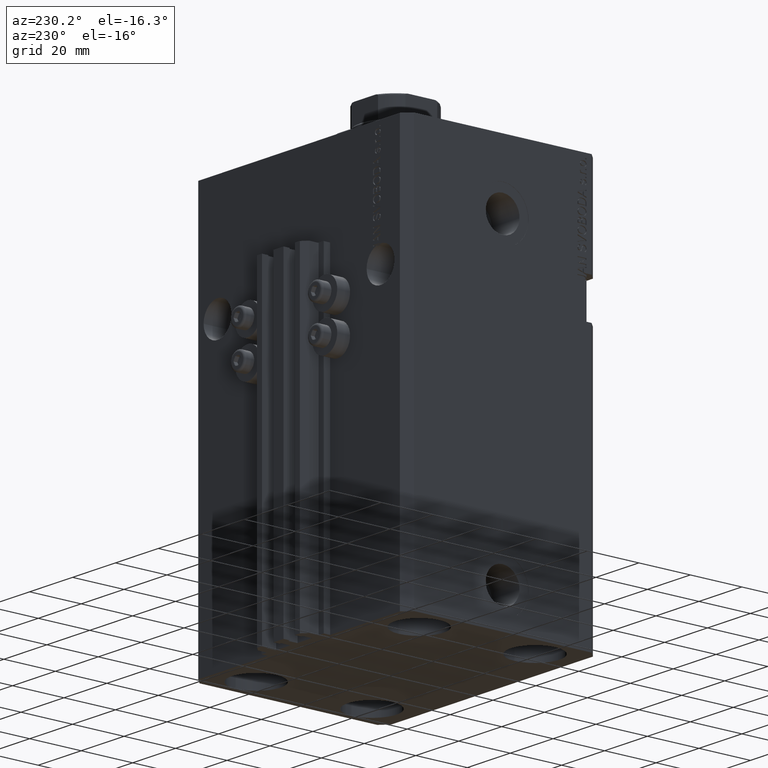
[diagram: clean part render]
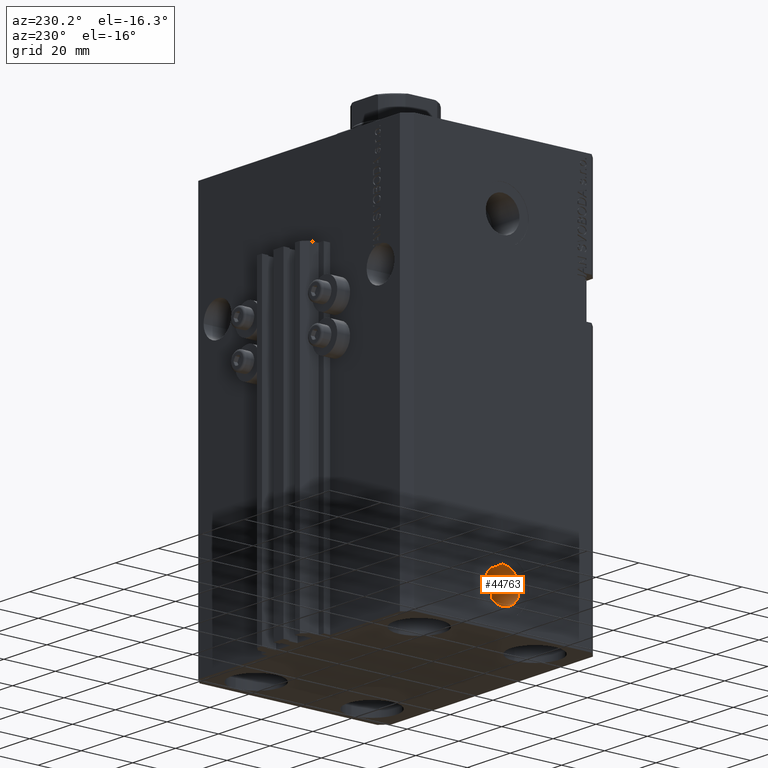
[diagram: same view with one face highlighted and labeled with its STEP entity id]
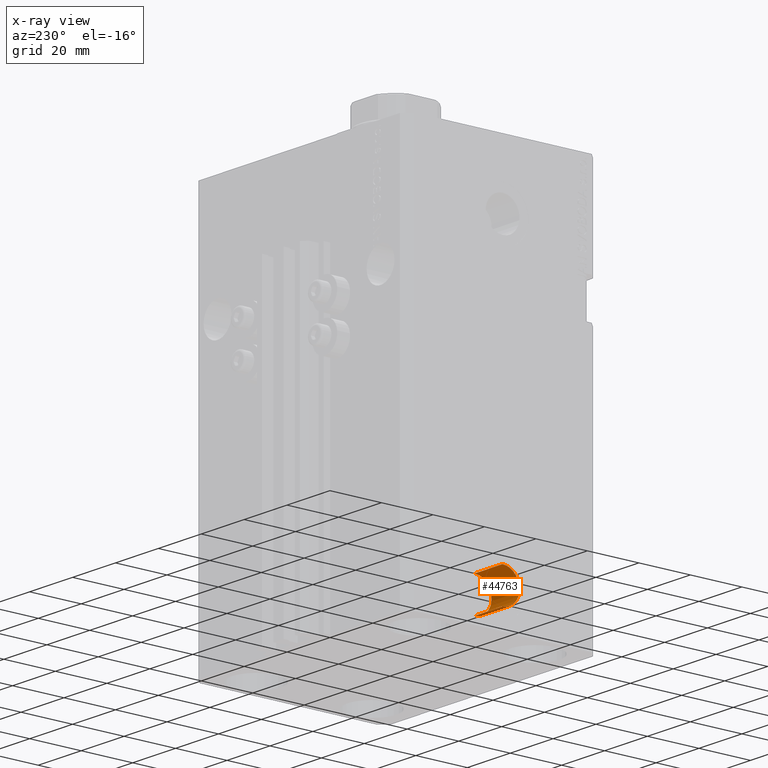
[diagram: x-ray of the same camera — body ghosted, the highlighted face saturated]
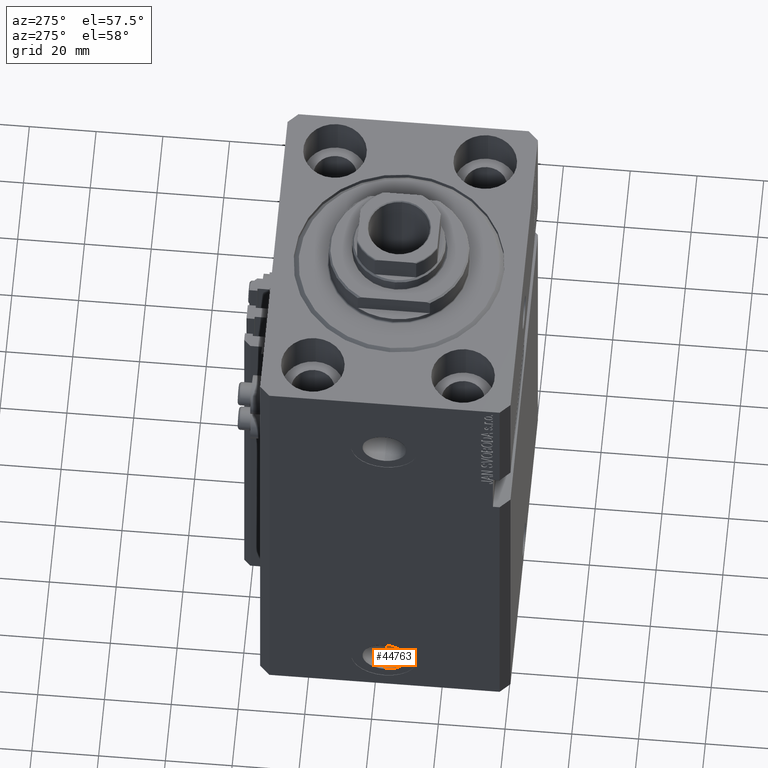
[diagram: same view with one face highlighted and labeled with its STEP entity id]
A machine part, auxiliary view. The second image highlights one B-rep face of the part: STEP entity #44763.
The next image is the same camera in x-ray: the body ghosted, the highlighted face saturated — about 0% of this face is hidden behind the body in this view.
A second angle (auxiliary view) of the same face is appended — the face is thin or edge-on in the first view.
In plain terms, the highlighted cylindrical surface (edge-blend (fillet) strip) has radius 6.58 mm, axis along (-1, -0, -0).
Its self-contained STEP definition (entity closure, byte-faithful):
#1249 = ORIENTED_EDGE ( 'NONE', *, *, #32635, .T. ) ;
#1422 = CARTESIAN_POINT ( 'NONE',  ( -36.90000000000000568, -2.726265550469745563E-14, -133.9199999999999875 ) ) ;
#1808 = CARTESIAN_POINT ( 'NONE',  ( -36.90000000000000568, -2.645683791085849344E-14, -147.0799999999999841 ) ) ;
#2974 = VERTEX_POINT ( 'NONE', #22965 ) ;
#5081 = LINE ( 'NONE', #1422, #13408 ) ;
#5542 = CARTESIAN_POINT ( 'NONE',  ( -36.90000000000000568, -2.726265550469745563E-14, -140.5000000000000000 ) ) ;
#6839 = EDGE_CURVE ( 'NONE', #21367, #10964, #12116, .T. ) ;
#7303 = CARTESIAN_POINT ( 'NONE',  ( -49.90000000000000568, -2.645683791085849344E-14, -147.0799999999999841 ) ) ;
#8368 = VECTOR ( 'NONE', #38663, 1000.000000000000000 ) ;
#8702 = DIRECTION ( 'NONE',  ( 0.000000000000000000, 0.000000000000000000, 1.000000000000000000 ) ) ;
#10964 = VERTEX_POINT ( 'NONE', #7303 ) ;
#12025 = CIRCLE ( 'NONE', #40767, 6.580000000000002736 ) ;
#12116 = LINE ( 'NONE', #26966, #8368 ) ;
#12374 = DIRECTION ( 'NONE',  ( -1.000000000000000000, 0.000000000000000000, 0.000000000000000000 ) ) ;
#13281 = CARTESIAN_POINT ( 'NONE',  ( -36.90000000000000568, -2.726265550469745563E-14, -140.5000000000000000 ) ) ;
#13408 = VECTOR ( 'NONE', #46010, 1000.000000000000000 ) ;
#14572 = DIRECTION ( 'NONE',  ( 0.000000000000000000, 0.000000000000000000, 1.000000000000000000 ) ) ;
#18224 = DIRECTION ( 'NONE',  ( -1.000000000000000000, 0.000000000000000000, 0.000000000000000000 ) ) ;
#18768 = AXIS2_PLACEMENT_3D ( 'NONE', #5542, #12374, #8702 ) ;
#19112 = EDGE_LOOP ( 'NONE', ( #40205, #29986, #1249, #34174 ) ) ;
#21077 = FACE_OUTER_BOUND ( 'NONE', #19112, .T. ) ;
#21367 = VERTEX_POINT ( 'NONE', #1808 ) ;
#21896 = CARTESIAN_POINT ( 'NONE',  ( -49.90000000000000568, -2.726265550469745563E-14, -140.5000000000000000 ) ) ;
#22775 = EDGE_CURVE ( 'NONE', #21367, #2974, #40548, .T. ) ;
#22965 = CARTESIAN_POINT ( 'NONE',  ( -36.90000000000000568, -2.726265550469745563E-14, -133.9199999999999875 ) ) ;
#24626 = EDGE_CURVE ( 'NONE', #2974, #29811, #5081, .T. ) ;
#26966 = CARTESIAN_POINT ( 'NONE',  ( -36.90000000000000568, -2.645683791085849659E-14, -147.0799999999999841 ) ) ;
#29811 = VERTEX_POINT ( 'NONE', #31305 ) ;
#29986 = ORIENTED_EDGE ( 'NONE', *, *, #6839, .T. ) ;
#31305 = CARTESIAN_POINT ( 'NONE',  ( -49.90000000000000568, -2.726265550469745563E-14, -133.9199999999999875 ) ) ;
#31371 = AXIS2_PLACEMENT_3D ( 'NONE', #13281, #42748, #39826 ) ;
#32635 = EDGE_CURVE ( 'NONE', #10964, #29811, #12025, .T. ) ;
#34174 = ORIENTED_EDGE ( 'NONE', *, *, #24626, .F. ) ;
#35191 = CYLINDRICAL_SURFACE ( 'NONE', #31371, 6.580000000000002736 ) ;
#38663 = DIRECTION ( 'NONE',  ( -1.000000000000000000, -0.000000000000000000, -0.000000000000000000 ) ) ;
#39826 = DIRECTION ( 'NONE',  ( 0.000000000000000000, 0.000000000000000000, 1.000000000000000000 ) ) ;
#40205 = ORIENTED_EDGE ( 'NONE', *, *, #22775, .F. ) ;
#40548 = CIRCLE ( 'NONE', #18768, 6.580000000000002736 ) ;
#40767 = AXIS2_PLACEMENT_3D ( 'NONE', #21896, #18224, #14572 ) ;
#42748 = DIRECTION ( 'NONE',  ( -1.000000000000000000, -0.000000000000000000, -0.000000000000000000 ) ) ;
#44763 = ADVANCED_FACE ( 'NONE', ( #21077 ), #35191, .F. ) ;
#46010 = DIRECTION ( 'NONE',  ( -1.000000000000000000, -0.000000000000000000, -0.000000000000000000 ) ) ;